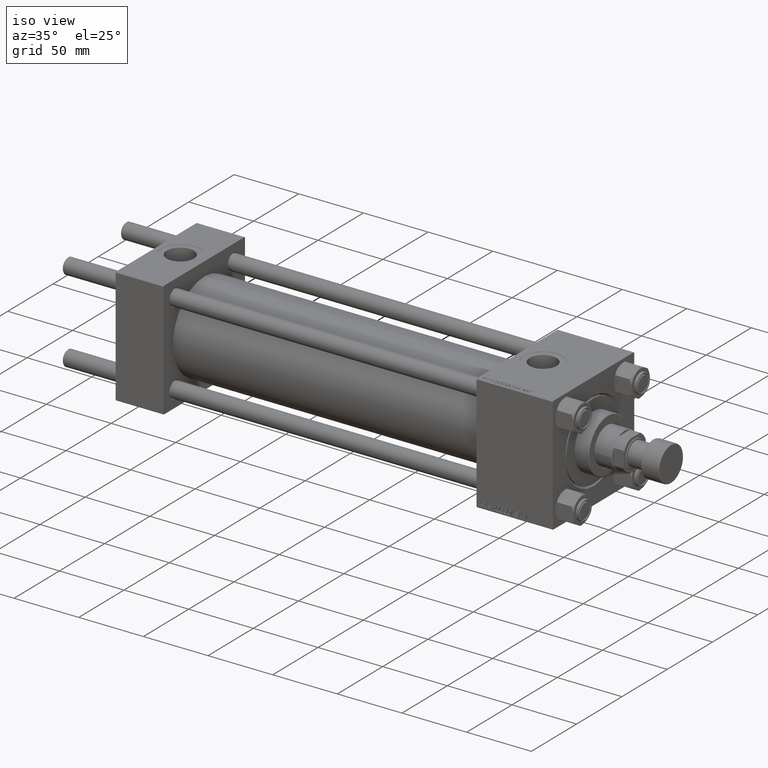
[diagram: clean part render]
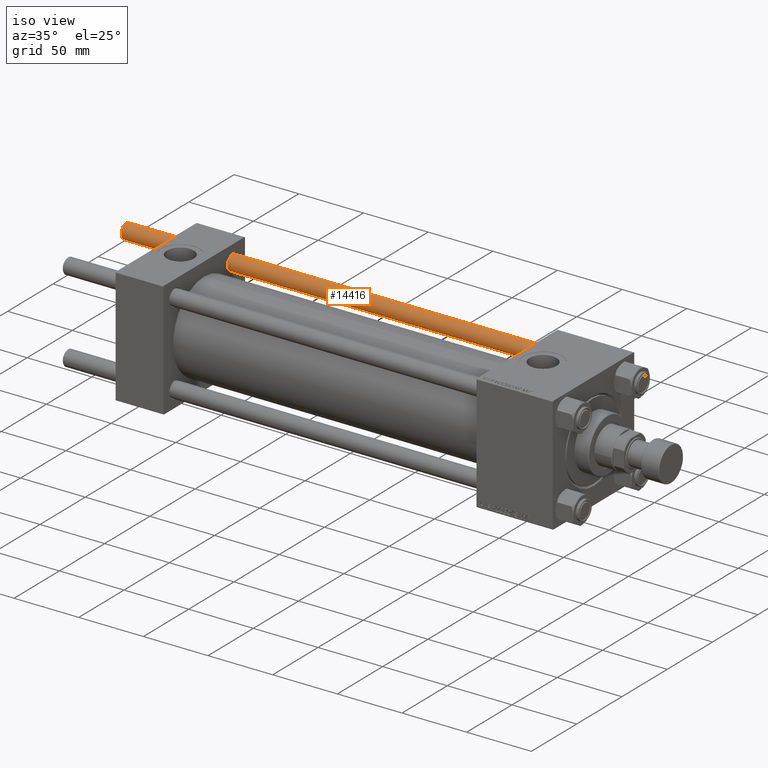
[diagram: same view with one face highlighted and labeled with its STEP entity id]
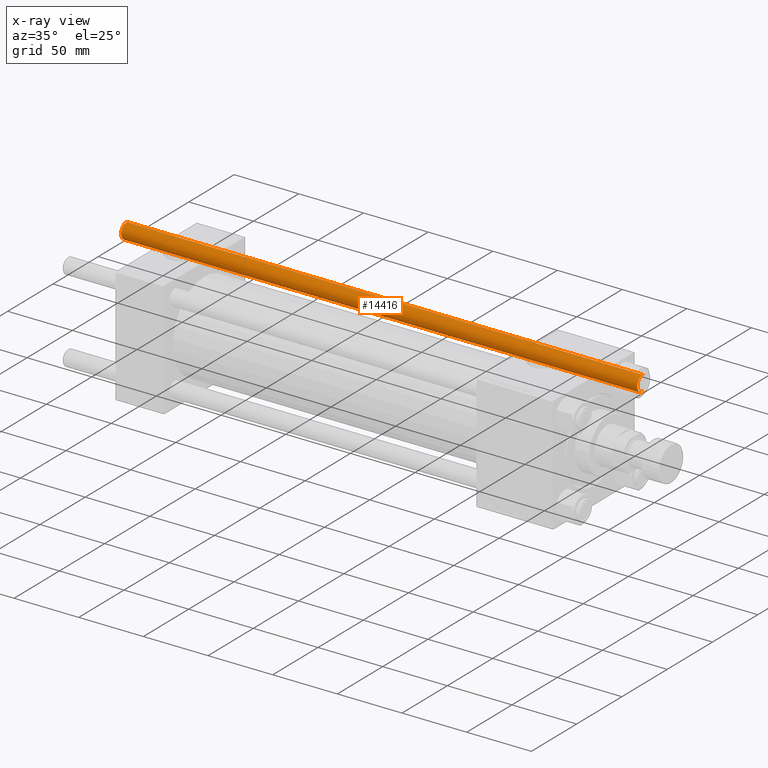
[diagram: x-ray of the same camera — body ghosted, the highlighted face saturated]
A machine part, iso view. The second image highlights one B-rep face of the part: STEP entity #14416.
The next image is the same camera in x-ray: the body ghosted, the highlighted face saturated — about 0% of this face is hidden behind the body in this view.
In plain terms, the highlighted cylindrical surface (edge-blend (fillet) strip) has radius 6 mm, axis along (-1, -0, -0).
Its self-contained STEP definition (entity closure, byte-faithful):
#2099 = CARTESIAN_POINT ( 'NONE',  ( 0.000000000000000000, 0.000000000000000000, 0.5000000000000004441 ) ) ;
#4602 = EDGE_CURVE ( 'NONE', #22331, #38398, #9790, .T. ) ;
#4743 = EDGE_CURVE ( 'NONE', #32809, #38398, #43808, .T. ) ;
#5113 = CARTESIAN_POINT ( 'NONE',  ( 6.000000000000000888, 7.347880794884120722E-16, 0.5000000000000004441 ) ) ;
#5483 = CARTESIAN_POINT ( 'NONE',  ( -6.000000000000000888, 0.000000000000000000, 0.5000000000000004441 ) ) ;
#5801 = DIRECTION ( 'NONE',  ( -0.000000000000000000, -0.000000000000000000, -1.000000000000000000 ) ) ;
#6467 = DIRECTION ( 'NONE',  ( 1.000000000000000000, 0.000000000000000000, 0.000000000000000000 ) ) ;
#6820 = AXIS2_PLACEMENT_3D ( 'NONE', #10409, #42933, #18882 ) ;
#7422 = EDGE_CURVE ( 'NONE', #50672, #32809, #13176, .T. ) ;
#8671 = CARTESIAN_POINT ( 'NONE',  ( -6.000000000000000888, 0.000000000000000000, 400.0000000000000000 ) ) ;
#9790 = LINE ( 'NONE', #29365, #48858 ) ;
#9873 = CIRCLE ( 'NONE', #47886, 6.000000000000000888 ) ;
#10409 = CARTESIAN_POINT ( 'NONE',  ( 0.000000000000000000, 0.000000000000000000, 400.0000000000000000 ) ) ;
#10456 = DIRECTION ( 'NONE',  ( 0.000000000000000000, 0.000000000000000000, -1.000000000000000000 ) ) ;
#12192 = ORIENTED_EDGE ( 'NONE', *, *, #19439, .T. ) ;
#13176 = LINE ( 'NONE', #8671, #40482 ) ;
#14416 = ADVANCED_FACE ( 'NONE', ( #47416 ), #19403, .T. ) ;
#14532 = DIRECTION ( 'NONE',  ( -0.000000000000000000, -0.000000000000000000, 1.000000000000000000 ) ) ;
#18882 = DIRECTION ( 'NONE',  ( -1.000000000000000000, 0.000000000000000000, 0.000000000000000000 ) ) ;
#19403 = CYLINDRICAL_SURFACE ( 'NONE', #6820, 6.000000000000000888 ) ;
#19439 = EDGE_CURVE ( 'NONE', #22331, #50672, #9873, .T. ) ;
#22331 = VERTEX_POINT ( 'NONE', #30967 ) ;
#23042 = ORIENTED_EDGE ( 'NONE', *, *, #4743, .T. ) ;
#26958 = DIRECTION ( 'NONE',  ( 1.000000000000000000, 0.000000000000000000, 0.000000000000000000 ) ) ;
#27502 = CARTESIAN_POINT ( 'NONE',  ( -6.000000000000000888, 0.000000000000000000, 399.5000000000000000 ) ) ;
#29365 = CARTESIAN_POINT ( 'NONE',  ( 6.000000000000000888, 7.347880794884120722E-16, 400.0000000000000000 ) ) ;
#30494 = ORIENTED_EDGE ( 'NONE', *, *, #4602, .F. ) ;
#30967 = CARTESIAN_POINT ( 'NONE',  ( 6.000000000000000888, 7.347880794884120722E-16, 399.5000000000000000 ) ) ;
#32809 = VERTEX_POINT ( 'NONE', #5483 ) ;
#38398 = VERTEX_POINT ( 'NONE', #5113 ) ;
#40482 = VECTOR ( 'NONE', #41732, 1000.000000000000000 ) ;
#41732 = DIRECTION ( 'NONE',  ( -0.000000000000000000, -0.000000000000000000, -1.000000000000000000 ) ) ;
#42933 = DIRECTION ( 'NONE',  ( -0.000000000000000000, -0.000000000000000000, -1.000000000000000000 ) ) ;
#43808 = CIRCLE ( 'NONE', #52251, 6.000000000000000888 ) ;
#44306 = EDGE_LOOP ( 'NONE', ( #30494, #12192, #44347, #23042 ) ) ;
#44347 = ORIENTED_EDGE ( 'NONE', *, *, #7422, .T. ) ;
#46686 = CARTESIAN_POINT ( 'NONE',  ( 0.000000000000000000, 0.000000000000000000, 399.5000000000000000 ) ) ;
#47416 = FACE_OUTER_BOUND ( 'NONE', #44306, .T. ) ;
#47886 = AXIS2_PLACEMENT_3D ( 'NONE', #46686, #10456, #6467 ) ;
#48858 = VECTOR ( 'NONE', #5801, 1000.000000000000000 ) ;
#50672 = VERTEX_POINT ( 'NONE', #27502 ) ;
#52251 = AXIS2_PLACEMENT_3D ( 'NONE', #2099, #14532, #26958 ) ;